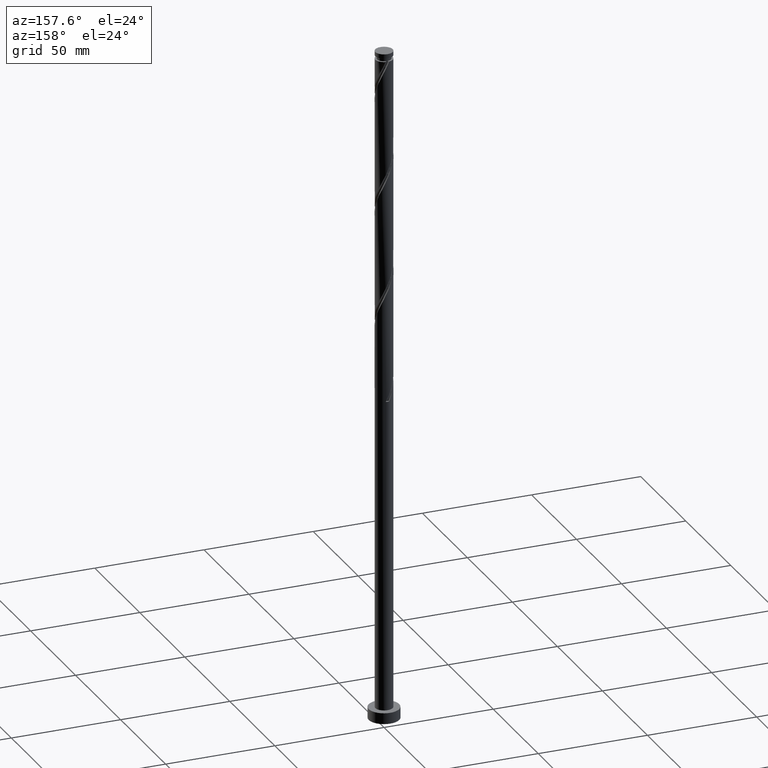
[diagram: clean part render]
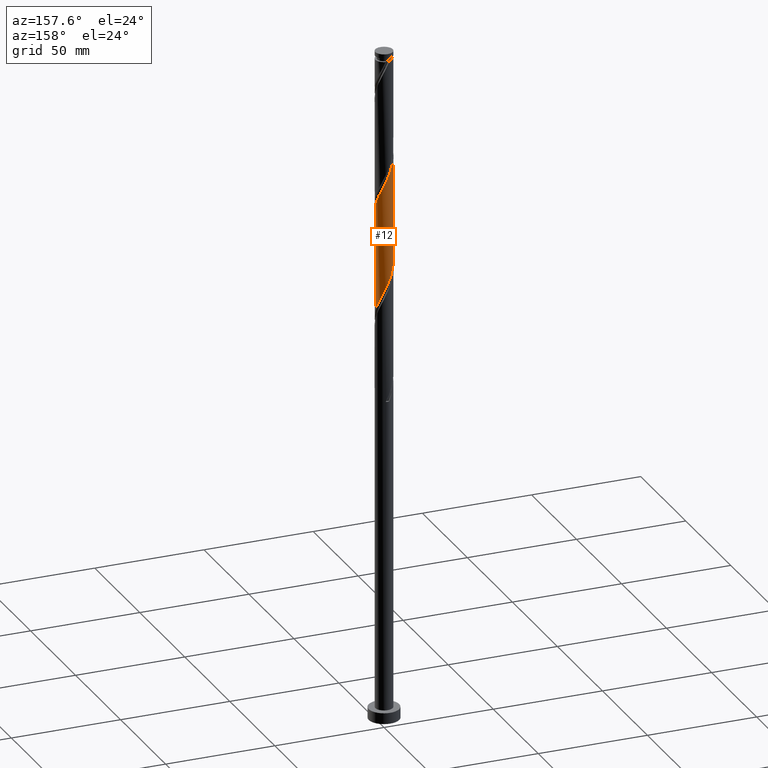
[diagram: same view with one face highlighted and labeled with its STEP entity id]
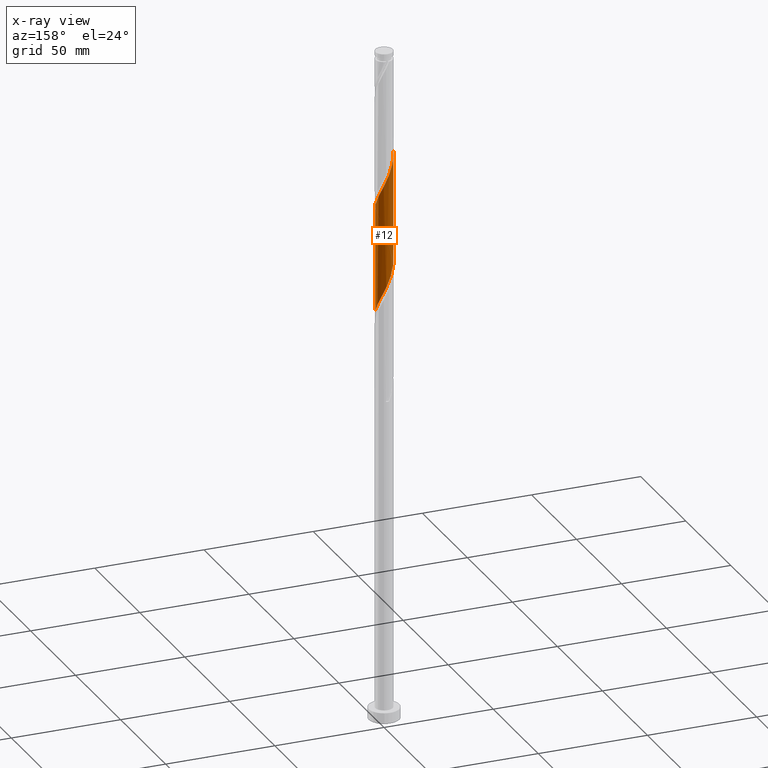
[diagram: x-ray of the same camera — body ghosted, the highlighted face saturated]
A machine part, auxiliary view. The second image highlights one B-rep face of the part: STEP entity #12.
The next image is the same camera in x-ray: the body ghosted, the highlighted face saturated — about 0% of this face is hidden behind the body in this view.
In plain terms, the highlighted cylindrical surface (edge-blend (fillet) strip) has radius 4 mm, axis along (-0, -0, -1).
Its self-contained STEP definition (entity closure, byte-faithful):
#2 =( BOUNDED_CURVE ( )  B_SPLINE_CURVE ( 2, ( #969, #1435, #1168, #255, #994, #424, #1423, #526, #1568, #714, #1602, #96, #234, #1300, #106, #844, #823, #854, #1725, #1120, #1146, #1904, #703, #692, #1892, #680, #1279, #1157, #1580, #1713, #1735 ),
 .UNSPECIFIED., .F., .T. ) 
 B_SPLINE_CURVE_WITH_KNOTS ( ( 3, 2, 2, 2, 2, 2, 2, 2, 2, 2, 2, 2, 2, 2, 2, 3 ),
 ( 0.4295303401299219725, 0.4375000000000000000, 0.4464285714285713969, 0.4553571428571429047, 0.4642857142857143016, 0.4732142857142856984, 0.4821428571428570953, 0.4910714285714286031, 0.5000000000000000000, 0.5089285714285713969, 0.5178571428571427937, 0.5267857142857143016, 0.5357142857142856984, 0.5446428571428572063, 0.5535714285714286031, 0.5545303401299215285 ),
 .UNSPECIFIED. ) 
 CURVE ( )  GEOMETRIC_REPRESENTATION_ITEM ( )  RATIONAL_B_SPLINE_CURVE ( ( 0.9079949616362109621, 0.9039886423360738998, 0.9090909090909405910, 0.9033747362666157965, 0.9090909090909405910, 0.9033747362666157965, 0.9090909090909405910, 0.9033747362666157965, 0.9090909090909405910, 0.9033747362666157965, 0.9090909090909405910, 0.9033747362666157965, 0.9090909090909405910, 0.9033747362666157965, 0.9090909090909405910, 0.9033747362666157965, 0.9090909090909405910, 0.9033747362666157965, 0.9090909090909405910, 0.9033747362666157965, 0.9090909090909405910, 0.9033747362666157965, 0.9090909090909405910, 0.9033747362666157965, 0.9090909090909405910, 0.9033747362666157965, 0.9090909090909405910, 0.9033747362666157965, 0.9090909090909405910, 0.9084770030214827097, 0.9079949616362111842 ) ) 
 REPRESENTATION_ITEM ( '' )  );
#8 = CARTESIAN_POINT ( 'NONE',  ( -2.222986362731491639, 3.355809096668276759, 207.0109676459098580 ) ) ;
#12 = ADVANCED_FACE ( 'NONE', ( #1620 ), #280, .T. ) ;
#96 = CARTESIAN_POINT ( 'NONE',  ( 1.420513679056762957, 3.766332957902740475, 248.2609676459098011 ) ) ;
#103 = CARTESIAN_POINT ( 'NONE',  ( 1.648314880873155808, 3.644592988728934113, 198.5734676459099148 ) ) ;
#106 = CARTESIAN_POINT ( 'NONE',  ( 0.09624924134435117185, 3.998841842776566846, 251.0734676459098864 ) ) ;
#113 = CARTESIAN_POINT ( 'NONE',  ( -3.999999999999999112, 2.380660876683418675E-15, 215.2479847238159039 ) ) ;
#121 = VERTEX_POINT ( 'NONE', #402 ) ;
#136 = CARTESIAN_POINT ( 'NONE',  ( -3.999999999999997335, 0.4020151261036984947, 214.4097136448522747 ) ) ;
#146 = CARTESIAN_POINT ( 'NONE',  ( -3.458872505219855675, 2.058961887652577261, 210.7609676459099433 ) ) ;
#152 = VERTEX_POINT ( 'NONE', #1882 ) ;
#170 = EDGE_CURVE ( 'NONE', #121, #1582, #2, .T. ) ;
#231 = CARTESIAN_POINT ( 'NONE',  ( 3.766332957902735146, 1.420513679056757850, 192.0109676459098864 ) ) ;
#234 = CARTESIAN_POINT ( 'NONE',  ( 0.9836620935111638486, 3.877165057846942986, 249.1984676459099433 ) ) ;
#242 = CARTESIAN_POINT ( 'NONE',  ( 2.777010954688413413, 2.913989227796198733, 195.7609676459099717 ) ) ;
#255 = CARTESIAN_POINT ( 'NONE',  ( 3.830313472238020545, 1.237667874093734355, 240.7609676459098580 ) ) ;
#262 = CARTESIAN_POINT ( 'NONE',  ( 1.237667874093734577, 3.830313472238015660, 199.5109676459099148 ) ) ;
#264 = LINE ( 'NONE', #725, #931 ) ;
#274 = DIRECTION ( 'NONE',  ( -0.000000000000000000, -0.000000000000000000, -1.000000000000000000 ) ) ;
#280 = CYLINDRICAL_SURFACE ( 'NONE', #1741, 4.000000000000000000 ) ;
#291 = CARTESIAN_POINT ( 'NONE',  ( 0.000000000000000000, 0.000000000000000000, 309.0000000000000000 ) ) ;
#323 = EDGE_CURVE ( 'NONE', #813, #152, #1669, .T. ) ;
#385 = CARTESIAN_POINT ( 'NONE',  ( 3.561071027285505952, 1.821750020894124855, 192.9484676459098864 ) ) ;
#397 = CARTESIAN_POINT ( 'NONE',  ( 3.355809096668276759, 2.222986362731491194, 193.8859676459098296 ) ) ;
#402 = CARTESIAN_POINT ( 'NONE',  ( 4.000000000000005329, 8.507690907269842176E-16, 238.1489505680038405 ) ) ;
#420 = CARTESIAN_POINT ( 'NONE',  ( 0.7959899496852993472, 3.919999999999999485, 200.4484676459099433 ) ) ;
#424 = CARTESIAN_POINT ( 'NONE',  ( 3.458872505219860560, 2.058961887652578593, 242.6359676459098296 ) ) ;
#458 = CARTESIAN_POINT ( 'NONE',  ( -0.9836620935111604069, 3.877165057846936325, 204.1984676459098580 ) ) ;
#526 = CARTESIAN_POINT ( 'NONE',  ( 2.913989227796204506, 2.777010954688415634, 244.5109676459098296 ) ) ;
#529 = CARTESIAN_POINT ( 'NONE',  ( -4.000000000000005329, -7.612144495978278492E-16, 264.3989505680038405 ) ) ;
#547 = CARTESIAN_POINT ( 'NONE',  ( 3.066410025678344198, 2.568487795263845186, 194.8234676459099148 ) ) ;
#557 = CARTESIAN_POINT ( 'NONE',  ( 3.998841842776559741, 0.09624924134434870160, 189.1984676459099148 ) ) ;
#602 = CARTESIAN_POINT ( 'NONE',  ( -1.821750020894125299, 3.561071027285505508, 206.0734676459098580 ) ) ;
#603 = LINE ( 'NONE', #1049, #1102 ) ;
#666 = CARTESIAN_POINT ( 'NONE',  ( -0.09624924134434935385, 3.998841842776559741, 202.3234676459098580 ) ) ;
#679 = ORIENTED_EDGE ( 'NONE', *, *, #323, .F. ) ;
#680 = CARTESIAN_POINT ( 'NONE',  ( -3.766332957902740475, 1.420513679056761847, 261.3859676459098296 ) ) ;
#692 = CARTESIAN_POINT ( 'NONE',  ( -3.355809096668280311, 2.222986362731495635, 259.5109676459098296 ) ) ;
#703 = CARTESIAN_POINT ( 'NONE',  ( -3.066410025678348195, 2.568487795263850959, 258.5734676459099433 ) ) ;
#714 = CARTESIAN_POINT ( 'NONE',  ( 2.222986362731496079, 3.355809096668280311, 246.3859676459098296 ) ) ;
#720 = EDGE_CURVE ( 'NONE', #121, #152, #264, .T. ) ;
#724 = CARTESIAN_POINT ( 'NONE',  ( -3.644592988728935001, 1.648314880873155364, 211.6984676459098580 ) ) ;
#725 = CARTESIAN_POINT ( 'NONE',  ( 4.000000000000000000, 4.898587196589412829E-16, 309.0000000000000000 ) ) ;
#736 = CARTESIAN_POINT ( 'NONE',  ( -3.186430866508027204, 2.417986421170494449, 209.8234676459098296 ) ) ;
#813 = VERTEX_POINT ( 'NONE', #1444 ) ;
#823 = CARTESIAN_POINT ( 'NONE',  ( -0.7959899496852981260, 3.920000000000005258, 252.9484676459098864 ) ) ;
#844 = CARTESIAN_POINT ( 'NONE',  ( -0.3543120252768623413, 4.009686527761988195, 252.0109676459099148 ) ) ;
#854 = CARTESIAN_POINT ( 'NONE',  ( -1.237667874093734799, 3.830313472238020545, 253.8859676459098296 ) ) ;
#883 = DIRECTION ( 'NONE',  ( -0.000000000000000000, -0.000000000000000000, -1.000000000000000000 ) ) ;
#931 = VECTOR ( 'NONE', #274, 1000.000000000000000 ) ;
#969 = CARTESIAN_POINT ( 'NONE',  ( 4.000000000000005329, 8.507690907269842176E-16, 238.1489505680038405 ) ) ;
#983 = EDGE_CURVE ( 'NONE', #1582, #813, #603, .T. ) ;
#994 = CARTESIAN_POINT ( 'NONE',  ( 3.644592988728941663, 1.648314880873156696, 241.6984676459099148 ) ) ;
#1013 = CARTESIAN_POINT ( 'NONE',  ( -3.830313472238015660, 1.237667874093733689, 212.6359676459099148 ) ) ;
#1038 = DIRECTION ( 'NONE',  ( -0.000000000000000000, -0.000000000000000000, -1.000000000000000000 ) ) ;
#1048 = CARTESIAN_POINT ( 'NONE',  ( -0.5468105079655619649, 3.987997157791136171, 203.2609676459098864 ) ) ;
#1049 = CARTESIAN_POINT ( 'NONE',  ( -4.000000000000000000, 0.000000000000000000, 309.0000000000000000 ) ) ;
#1102 = VECTOR ( 'NONE', #1038, 1000.000000000000000 ) ;
#1120 = CARTESIAN_POINT ( 'NONE',  ( -2.058961887652579037, 3.458872505219860560, 255.7609676459098296 ) ) ;
#1143 = CARTESIAN_POINT ( 'NONE',  ( 0.3543120252768632295, 4.009686527761982866, 201.3859676459098864 ) ) ;
#1146 = CARTESIAN_POINT ( 'NONE',  ( -2.417986421170498446, 3.186430866508032533, 256.6984676459099433 ) ) ;
#1157 = CARTESIAN_POINT ( 'NONE',  ( -3.987997157791141500, 0.5468105079655636303, 263.2609676459098864 ) ) ;
#1166 = CARTESIAN_POINT ( 'NONE',  ( -3.919999999999999485, 0.7959899496852985701, 213.5734676459098580 ) ) ;
#1168 = CARTESIAN_POINT ( 'NONE',  ( 3.920000000000005258, 0.7959899496852984591, 239.8234676459099433 ) ) ;
#1201 = CARTESIAN_POINT ( 'NONE',  ( -1.420513679056759404, 3.766332957902735146, 205.1359676459098864 ) ) ;
#1256 = ORIENTED_EDGE ( 'NONE', *, *, #170, .F. ) ;
#1264 = CARTESIAN_POINT ( 'NONE',  ( 3.999999999999999112, -2.828434082329203080E-15, 188.9979847238159891 ) ) ;
#1279 = CARTESIAN_POINT ( 'NONE',  ( -3.877165057846942986, 0.9836620935111631825, 262.3234676459098864 ) ) ;
#1300 = CARTESIAN_POINT ( 'NONE',  ( 0.5468105079655644074, 3.987997157791141500, 250.1359676459099148 ) ) ;
#1344 = CARTESIAN_POINT ( 'NONE',  ( -2.568487795263845186, 3.066410025678343754, 207.9484676459098864 ) ) ;
#1350 = ORIENTED_EDGE ( 'NONE', *, *, #720, .T. ) ;
#1423 = CARTESIAN_POINT ( 'NONE',  ( 3.186430866508033866, 2.417986421170497557, 243.5734676459099717 ) ) ;
#1434 = EDGE_LOOP ( 'NONE', ( #1256, #1350, #679, #1704 ) ) ;
#1435 = CARTESIAN_POINT ( 'NONE',  ( 4.000000000000005329, 0.4020151261036809531, 238.9872216469674413 ) ) ;
#1443 = CARTESIAN_POINT ( 'NONE',  ( 2.417986421170495337, 3.186430866508027204, 196.6984676459098864 ) ) ;
#1444 = CARTESIAN_POINT ( 'NONE',  ( -3.999999999999999112, 2.380660876683419069E-15, 215.2479847238159039 ) ) ;
#1568 = CARTESIAN_POINT ( 'NONE',  ( 2.568487795263851403, 3.066410025678347750, 245.4484676459099433 ) ) ;
#1580 = CARTESIAN_POINT ( 'NONE',  ( -3.998841842776566846, 0.09624924134435031142, 264.1984676459100001 ) ) ;
#1582 = VERTEX_POINT ( 'NONE', #529 ) ;
#1599 = CARTESIAN_POINT ( 'NONE',  ( 2.058961887652577261, 3.458872505219855231, 197.6359676459099148 ) ) ;
#1602 = CARTESIAN_POINT ( 'NONE',  ( 1.821750020894129740, 3.561071027285511281, 247.3234676459100001 ) ) ;
#1620 = FACE_OUTER_BOUND ( 'NONE', #1434, .T. ) ;
#1650 = DIRECTION ( 'NONE',  ( -1.000000000000000000, 0.000000000000000000, 0.000000000000000000 ) ) ;
#1669 =( BOUNDED_CURVE ( )  B_SPLINE_CURVE ( 2, ( #113, #136, #1166, #1013, #724, #146, #736, #1924, #1344, #8, #602, #1201, #458, #1048, #666, #1143, #420, #262, #103, #1599, #1443, #242, #547, #397, #385, #231, #1722, #1889, #557, #1732, #1264 ),
 .UNSPECIFIED., .F., .T. ) 
 B_SPLINE_CURVE_WITH_KNOTS ( ( 3, 2, 2, 2, 2, 2, 2, 2, 2, 2, 2, 2, 2, 2, 2, 3 ),
 ( 0.6795303401299223056, 0.6875000000000000000, 0.6964285714285713969, 0.7053571428571429047, 0.7142857142857143016, 0.7232142857142856984, 0.7321428571428570953, 0.7410714285714286031, 0.7500000000000000000, 0.7589285714285713969, 0.7678571428571429047, 0.7767857142857143016, 0.7857142857142856984, 0.7946428571428570953, 0.8035714285714286031, 0.8045303401299219725 ),
 .UNSPECIFIED. ) 
 CURVE ( )  GEOMETRIC_REPRESENTATION_ITEM ( )  RATIONAL_B_SPLINE_CURVE ( ( 0.9079949616362044118, 0.9039886423360679046, 0.9090909090909344847, 0.9033747362666094682, 0.9090909090909344847, 0.9033747362666094682, 0.9090909090909344847, 0.9033747362666094682, 0.9090909090909344847, 0.9033747362666094682, 0.9090909090909344847, 0.9033747362666094682, 0.9090909090909344847, 0.9033747362666094682, 0.9090909090909344847, 0.9033747362666094682, 0.9090909090909344847, 0.9033747362666094682, 0.9090909090909344847, 0.9033747362666094682, 0.9090909090909344847, 0.9033747362666094682, 0.9090909090909344847, 0.9033747362666094682, 0.9090909090909344847, 0.9033747362666094682, 0.9090909090909344847, 0.9033747362666094682, 0.9090909090909344847, 0.9084770030214763814, 0.9079949616362046338 ) ) 
 REPRESENTATION_ITEM ( '' )  );
#1704 = ORIENTED_EDGE ( 'NONE', *, *, #983, .F. ) ;
#1713 = CARTESIAN_POINT ( 'NONE',  ( -4.000000000000005329, 0.04813158866558843452, 264.2985878797787791 ) ) ;
#1722 = CARTESIAN_POINT ( 'NONE',  ( 3.877165057846936769, 0.9836620935111595188, 191.0734676459099148 ) ) ;
#1725 = CARTESIAN_POINT ( 'NONE',  ( -1.648314880873157140, 3.644592988728941663, 254.8234676459099433 ) ) ;
#1732 = CARTESIAN_POINT ( 'NONE',  ( 4.000000000000000000, 0.04813158866556459248, 189.0983474120410790 ) ) ;
#1735 = CARTESIAN_POINT ( 'NONE',  ( -4.000000000000005329, -7.612144495978278492E-16, 264.3989505680038405 ) ) ;
#1741 = AXIS2_PLACEMENT_3D ( 'NONE', #291, #883, #1650 ) ;
#1882 = CARTESIAN_POINT ( 'NONE',  ( 3.999999999999999112, -2.828434082329203080E-15, 188.9979847238159891 ) ) ;
#1889 = CARTESIAN_POINT ( 'NONE',  ( 3.987997157791136171, 0.5468105079655611878, 190.1359676459098580 ) ) ;
#1892 = CARTESIAN_POINT ( 'NONE',  ( -3.561071027285511725, 1.821750020894129296, 260.4484676459099433 ) ) ;
#1904 = CARTESIAN_POINT ( 'NONE',  ( -2.777010954688416078, 2.913989227796204506, 257.6359676459098864 ) ) ;
#1924 = CARTESIAN_POINT ( 'NONE',  ( -2.913989227796199177, 2.777010954688412081, 208.8859676459098580 ) ) ;